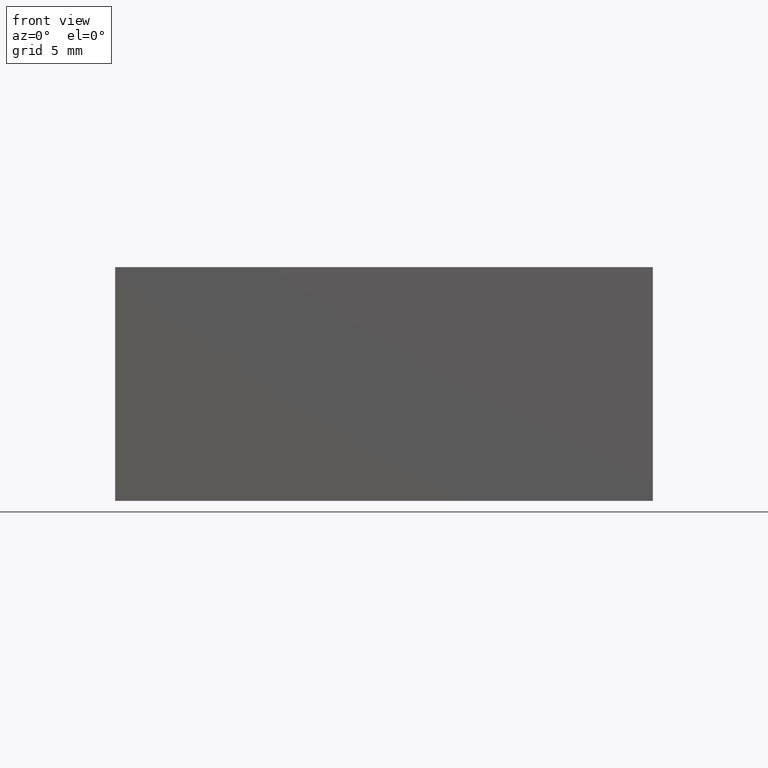
[diagram: clean part render]
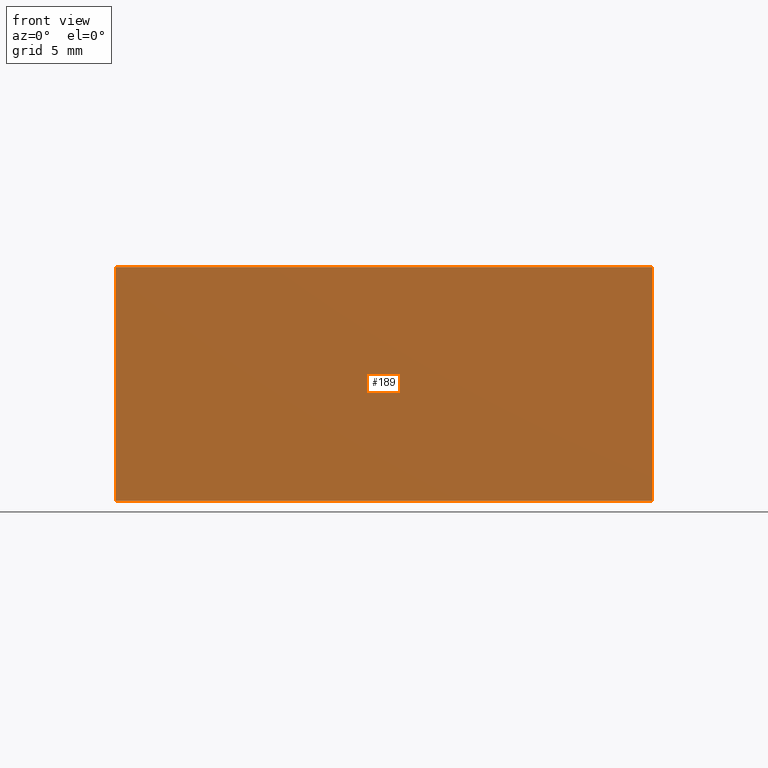
[diagram: same view with one face highlighted and labeled with its STEP entity id]
A machine part, front view. The second image highlights one B-rep face of the part: STEP entity #189.
In plain terms, the highlighted planar face has unit normal (0, -1, 0).
Its self-contained STEP definition (entity closure, byte-faithful):
#23=FACE_OUTER_BOUND('',#33,.T.);
#33=EDGE_LOOP('',(#159,#160,#161,#162));
#36=LINE('',#276,#60);
#45=LINE('',#293,#69);
#57=LINE('',#317,#81);
#58=LINE('',#319,#82);
#60=VECTOR('',#229,10.);
#69=VECTOR('',#240,10.);
#81=VECTOR('',#264,10.);
#82=VECTOR('',#267,10.);
#83=VERTEX_POINT('',#272);
#85=VERTEX_POINT('',#275);
#91=VERTEX_POINT('',#289);
#98=VERTEX_POINT('',#315);
#100=EDGE_CURVE('',#85,#83,#36,.T.);
#109=EDGE_CURVE('',#91,#85,#45,.T.);
#121=EDGE_CURVE('',#83,#98,#57,.T.);
#122=EDGE_CURVE('',#98,#91,#58,.T.);
#159=ORIENTED_EDGE('',*,*,#122,.T.);
#160=ORIENTED_EDGE('',*,*,#109,.T.);
#161=ORIENTED_EDGE('',*,*,#100,.T.);
#162=ORIENTED_EDGE('',*,*,#121,.T.);
#179=PLANE('',#222);
#189=ADVANCED_FACE('',(#23),#179,.T.);
#222=AXIS2_PLACEMENT_3D('',#318,#265,#266);
#229=DIRECTION('',(1.,2.14364376418753E-32,0.));
#240=DIRECTION('',(0.,0.,-1.));
#264=DIRECTION('',(0.,0.,1.));
#265=DIRECTION('center_axis',(2.14364376418753E-32,-1.,0.));
#266=DIRECTION('ref_axis',(0.,0.,-1.));
#267=DIRECTION('',(-1.,-2.14364376418753E-32,0.));
#272=CARTESIAN_POINT('',(11.5,7.52152442207793E-16,-5.));
#275=CARTESIAN_POINT('',(-11.5,7.52152442207793E-16,-5.));
#276=CARTESIAN_POINT('',(11.5,7.52152442207793E-16,-5.));
#289=CARTESIAN_POINT('',(-11.5,7.52152442207793E-16,5.));
#293=CARTESIAN_POINT('',(-11.5,7.52152442207793E-16,0.));
#315=CARTESIAN_POINT('',(11.5,7.52152442207793E-16,5.));
#317=CARTESIAN_POINT('',(11.5,7.52152442207793E-16,0.));
#318=CARTESIAN_POINT('Origin',(11.5,7.52152442207793E-16,0.));
#319=CARTESIAN_POINT('',(11.5,7.52152442207793E-16,5.));